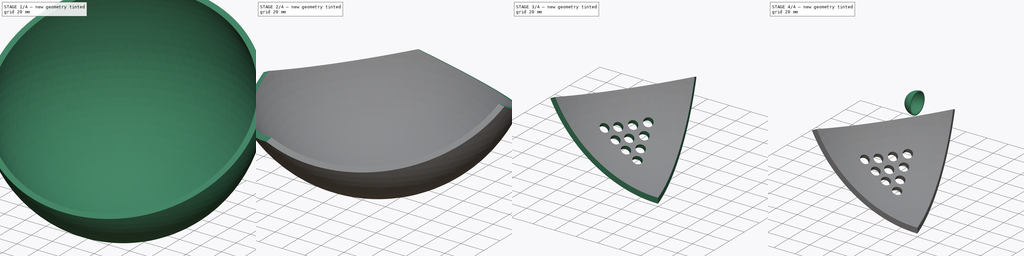
[diagram: build sequence overview — one tinted view per stage of 4, left to right]
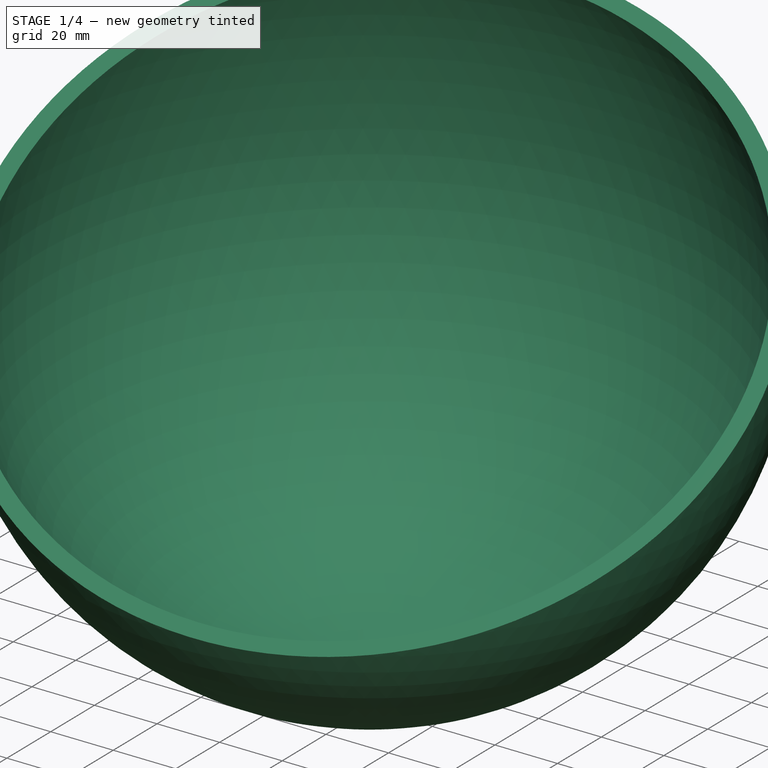
[diagram: stage 1 of 4 — iso view after this stage's code; geometry added in this stage tinted green]
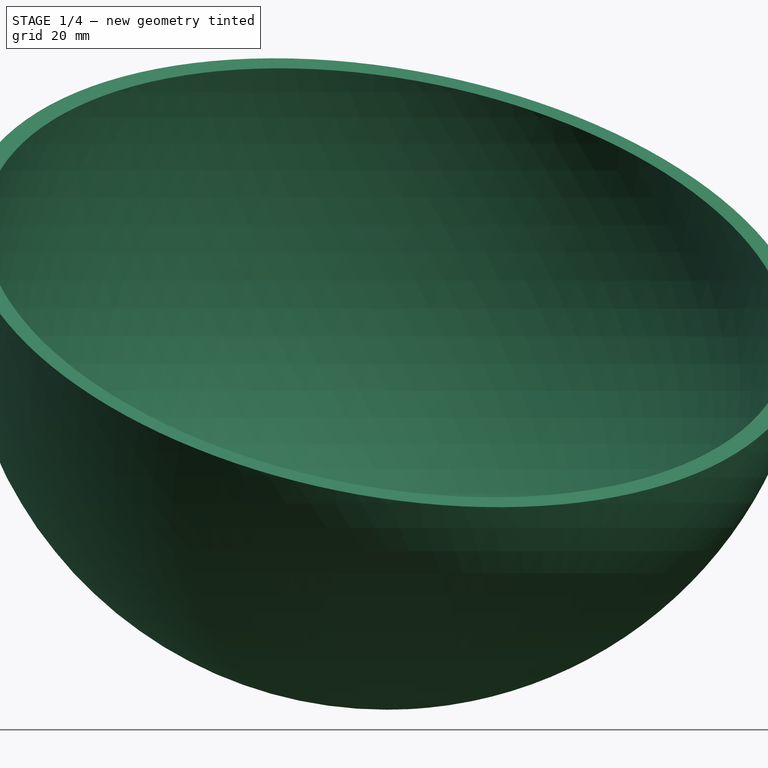
[diagram: stage 1 of 4 — front view after this stage's code; geometry added in this stage tinted green]
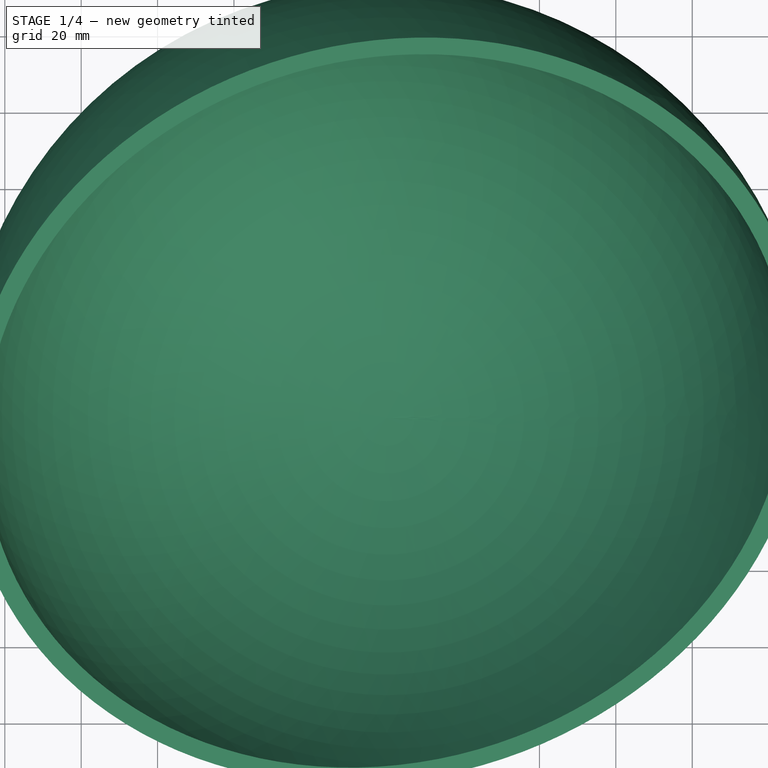
[diagram: stage 1 of 4 — top view after this stage's code; geometry added in this stage tinted green]
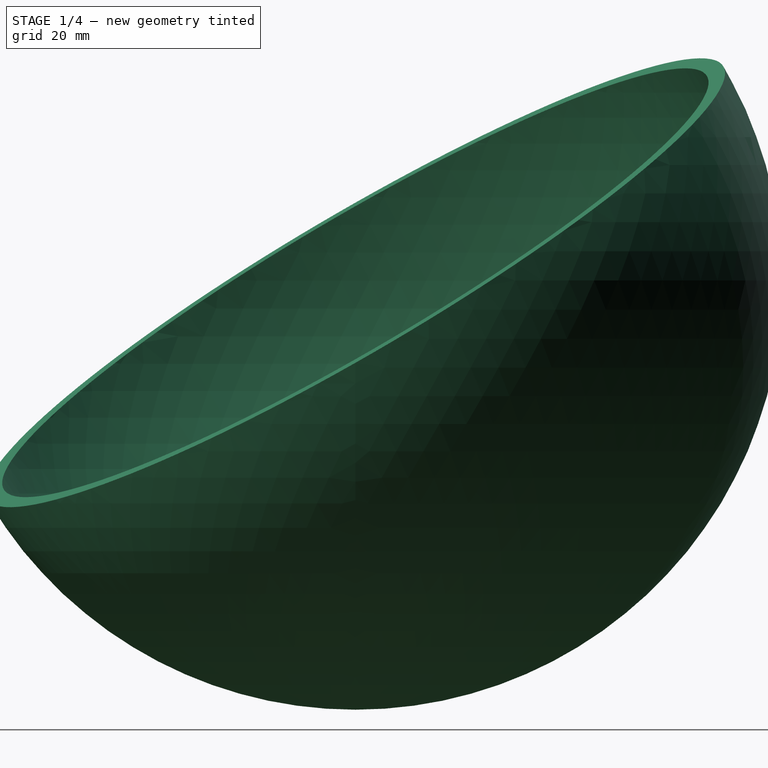
[diagram: stage 1 of 4 — right view after this stage's code; geometry added in this stage tinted green]
FCSTD DOCUMENT  (FreeCAD 0.19R24267 +99 (Git))
Label: test
License: All rights reserved
LicenseURL: http://en.wikipedia.org/wiki/All_rights_reserved
objects: PartDesign::SubtractiveBox×8, PartDesign::Body×3, PartDesign::Plane×3, PartDesign::AdditiveSphere×2, PartDesign::SubtractiveSphere×2, Part::Part2DObjectPython×2, Part::Vertex×1, App::Part×1, Spreadsheet::Sheet×1, Sketcher::SketchObject×1, PartDesign::Pocket×1
note: 36 computed .brp shape members not serialized (recipe doc carries the construction recipe); baked Part::Feature solids carry a one-line shape summary decoded from their .brp

FEATURE [PartDesign::Body] Body
  Group = -> [Sphere,Sphere001,Box]
  Origin = -> Origin
  Tip = -> Box
FEATURE [Part::Part2DObjectPython] Polygon  label="pentagon1"  # Draft 2D object (typed FeaturePython)
  Area = 0
  ChamferSize = 0
  DrawMode = 0
  FacesNumber = 5
  FilletRadius = 0
  MakeFace = false
  Placement = pos=(0,0,50) rot=(0,0,1;0rad)
  Radius = 100
  expr: .Placement.Base.z = <<Spreadsheet>>.hex_radius / 2
  expr: Radius = <<Spreadsheet>>.hex_radius
FEATURE [Part::Part2DObjectPython] Polygon001  label="pentagon0"  # Draft 2D object (typed FeaturePython)
  Area = 0
  ChamferSize = 0
  DrawMode = 0
  FacesNumber = 5
  FilletRadius = 0
  MakeFace = false
  Placement = pos=(0,0,-50) rot=(0,0,1;0.628319rad)
  Radius = 100
  expr: .Placement.Base.z = -<<Spreadsheet>>.hex_radius / 2
  expr: Radius = <<Spreadsheet>>.hex_radius
FEATURE [Part::Vertex] Vertex  label="center"
  AttacherType = Attacher::AttachEngine3D
  X = 0
  Y = 0
  Z = 0
FEATURE [PartDesign::Body] Body001
  Origin = -> Origin002
FEATURE [App::Part] Part
  Group = -> [Polygon001,Polygon,Vertex,Body001]
  Origin = -> Origin001
FEATURE [Spreadsheet::Sheet] Spreadsheet
  cells = A4=hex_radius; C4(hex_radius)==100mm; A5=sphere_radius; C5(sphere_radius)==hex_radius / 2 * sqrt(5)
FEATURE [PartDesign::Plane] DatumPlane
  Length = 79.1419
  MapMode = 13
  Placement = pos=(-16.6667,51.2947,33.3333) rot=(0.865183,0.137031,0.482371;0.63451rad)
  ResizeMode = 0
  Support = -> [Vertex,Polygon]
  Width = 119.482
FEATURE [PartDesign::AdditiveSphere] Sphere002
  Angle1 = -90
  Angle2 = 90
  Angle3 = 360
  AttacherType = Attacher::AttachEngine3D
  Radius = 111.803
  expr: Radius = <<Spreadsheet>>.sphere_radius
FEATURE [PartDesign::SubtractiveSphere] Sphere003
  Angle1 = -90
  Angle2 = 90
  Angle3 = 360
  AttacherType = Attacher::AttachEngine3D
  BaseFeature = -> Sphere002
  Radius = 106.803
  expr: Radius = <<Spreadsheet>>.sphere_radius - 5mm
FEATURE [PartDesign::SubtractiveBox] Box001
  AttacherType = Attacher::AttachEngine3D
  AttachmentOffset = pos=(-200,-200,0) rot=(0,0,1;0rad)
  BaseFeature = -> Sphere003
  Height = 400
  Length = 400
  MapMode = 5
  Placement = pos=(-154.305,-172.312,-71.8129) rot=(0.865183,0.137031,0.482371;0.63451rad)
  Support = -> [DatumPlane]
  Width = 400
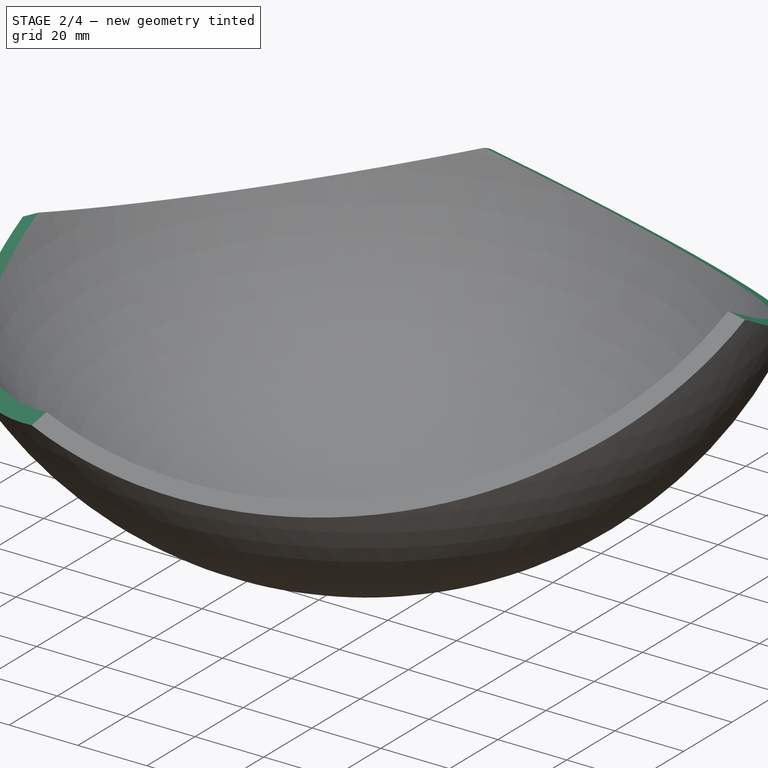
[diagram: stage 2 of 4 — iso view after this stage's code; geometry added in this stage tinted green]
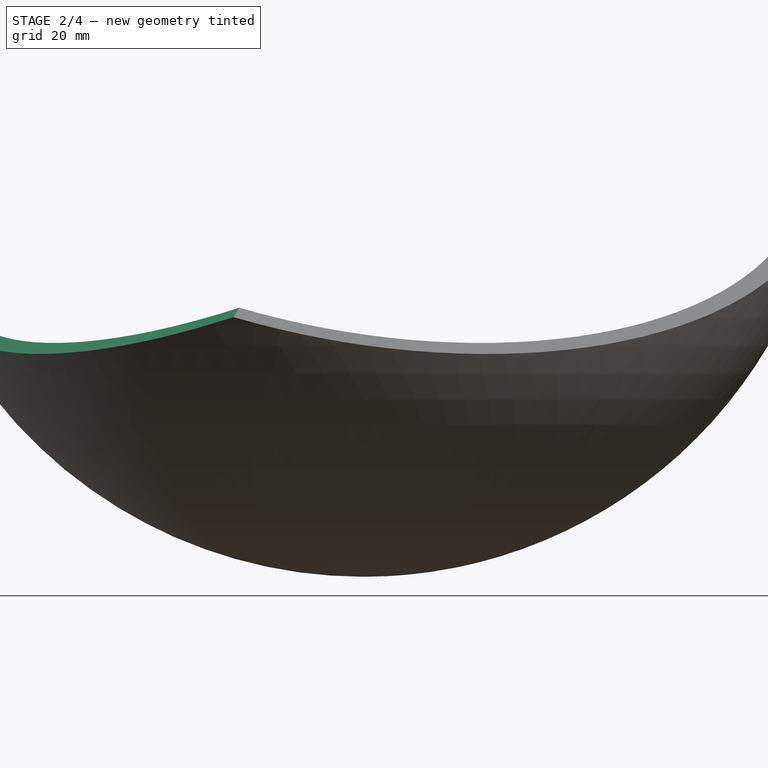
[diagram: stage 2 of 4 — front view after this stage's code; geometry added in this stage tinted green]
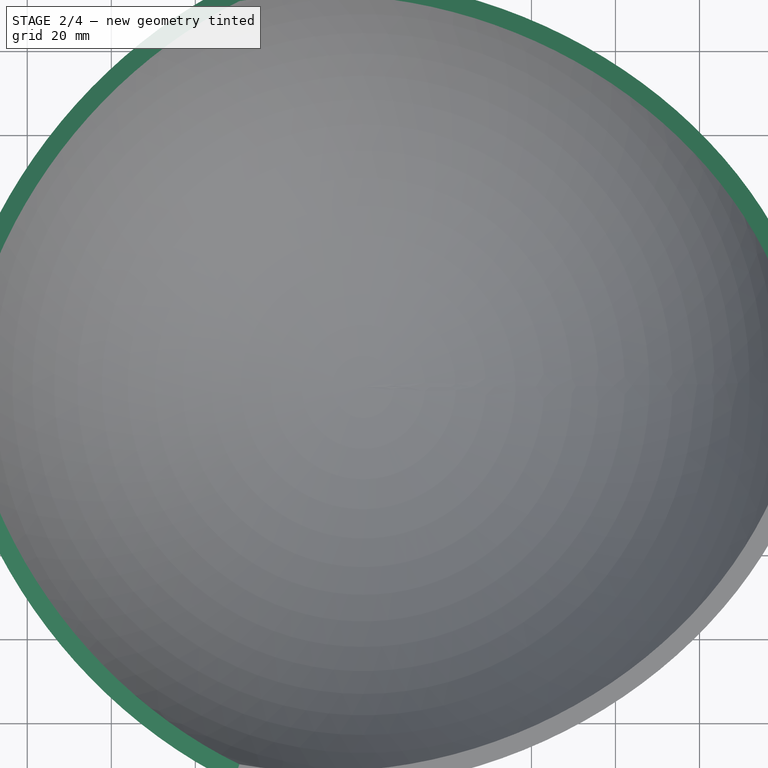
[diagram: stage 2 of 4 — top view after this stage's code; geometry added in this stage tinted green]
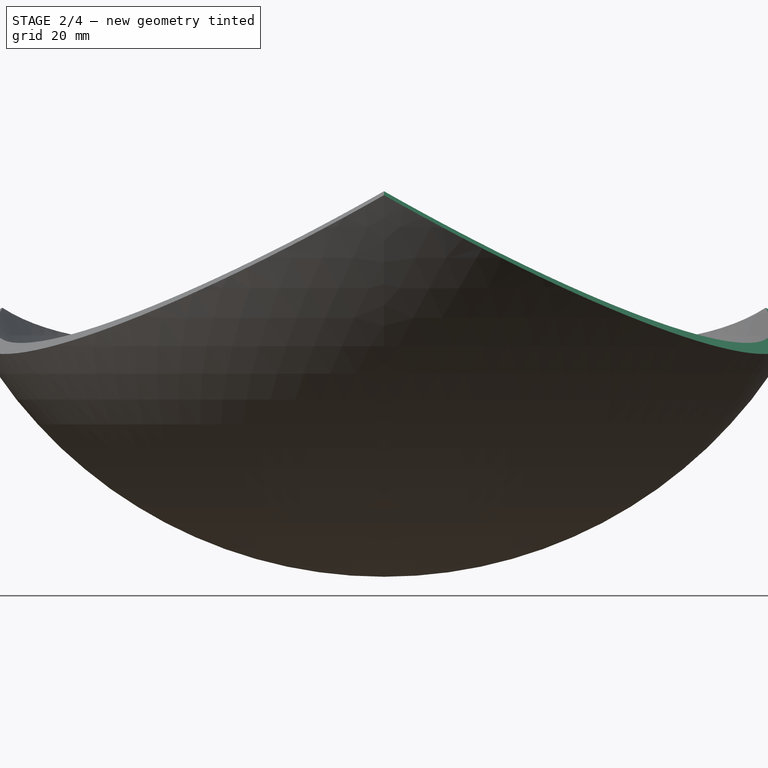
[diagram: stage 2 of 4 — right view after this stage's code; geometry added in this stage tinted green]
FEATURE [PartDesign::SubtractiveBox] Box002
  AttacherType = Attacher::AttachEngine3D
  AttachmentOffset = pos=(-200,-200,0) rot=(0,0,1;0rad)
  BaseFeature = -> Box001
  Height = 400
  Length = 400
  MapMode = 13
  Placement = pos=(-298.829,30.1015,-138.48) rot=(0.472633,-0.240819,-0.847717;1.08239rad)
  Support = -> [Vertex,Polygon001]
  Width = 400
FEATURE [PartDesign::SubtractiveBox] Box003
  AttacherType = Attacher::AttachEngine3D
  AttachmentOffset = pos=(-200,-200,0) rot=(0,0,1;0rad)
  BaseFeature = -> Box002
  Height = 400
  Length = 400
  MapMode = 13
  Placement = pos=(-63.715,293.505,-138.48) rot=(-0.137906,0.270656,0.952747;4.04547rad)
  Support = -> [Vertex,Polygon001]
  Width = 400
FEATURE [PartDesign::SubtractiveBox] Box004
  AttacherType = Attacher::AttachEngine3D
  AttachmentOffset = pos=(-200,-200,0) rot=(0,0,1;0rad)
  BaseFeature = -> Box003
  Height = 400
  Length = 400
  MapMode = 13
  Placement = pos=(259.451,151.295,-138.48) rot=(0.043241,0.273011,0.961039;2.83948rad)
  Support = -> [Vertex,Polygon001]
  Width = 400
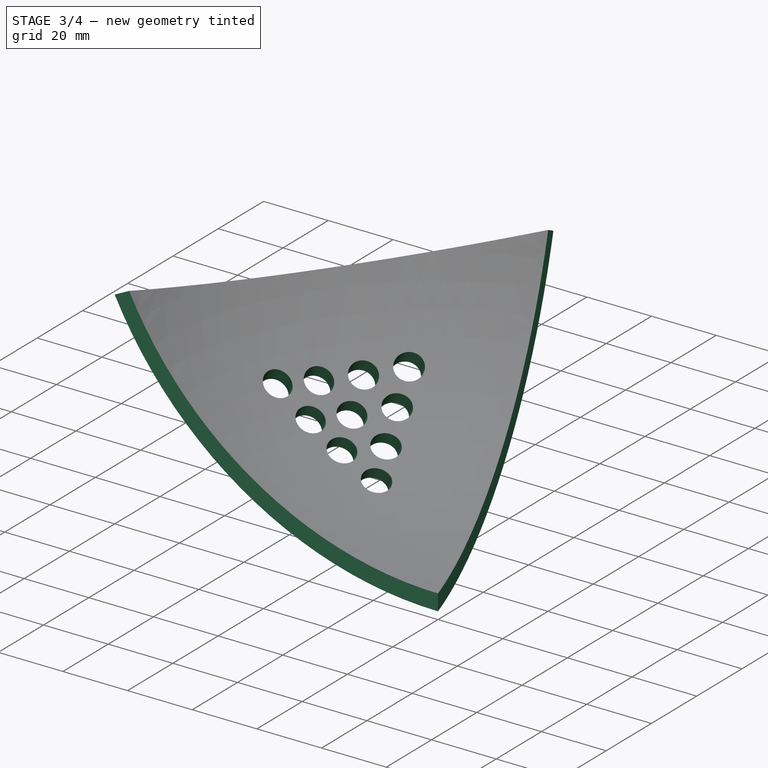
[diagram: stage 3 of 4 — iso view after this stage's code; geometry added in this stage tinted green]
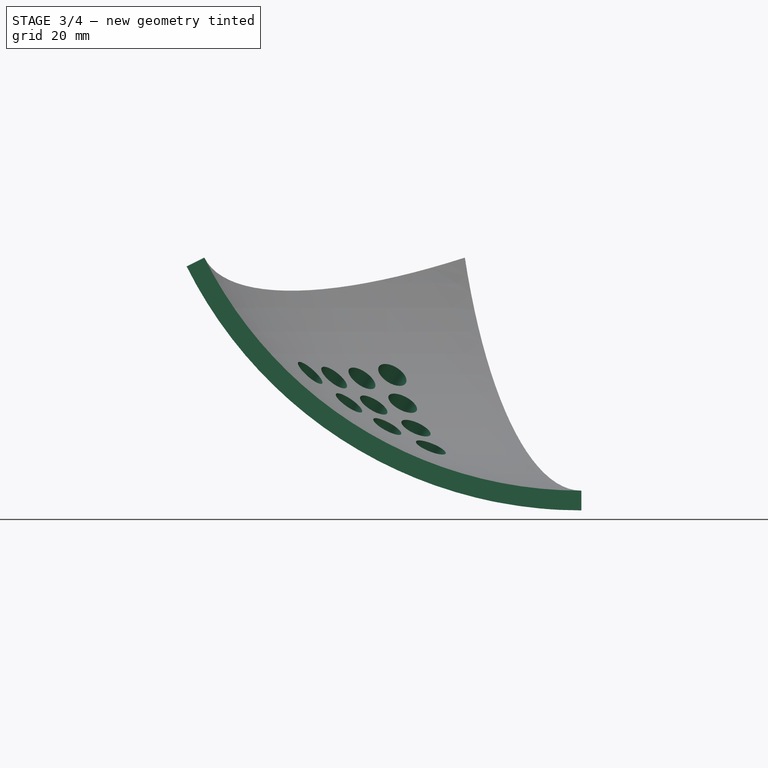
[diagram: stage 3 of 4 — front view after this stage's code; geometry added in this stage tinted green]
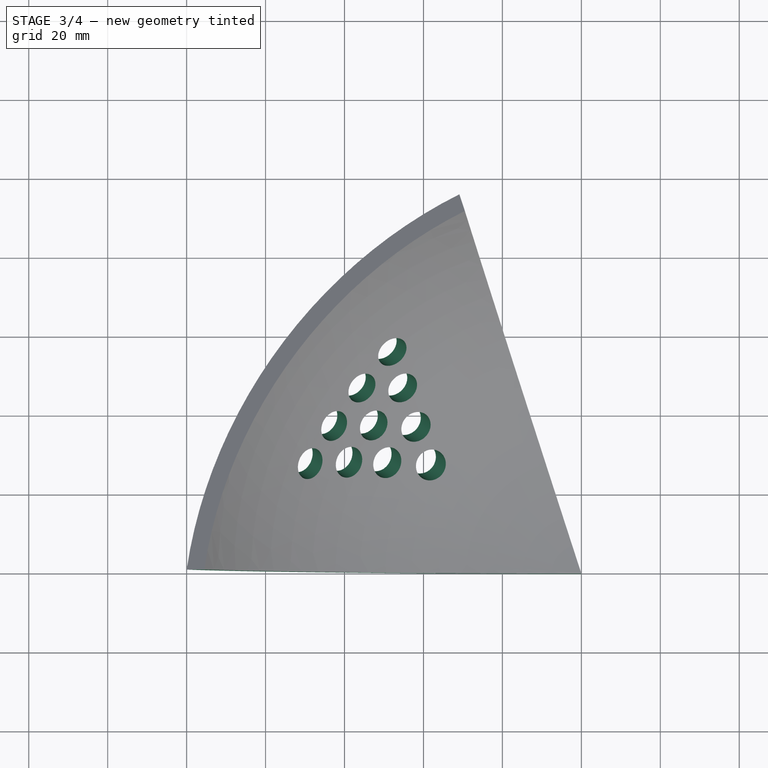
[diagram: stage 3 of 4 — top view after this stage's code; geometry added in this stage tinted green]
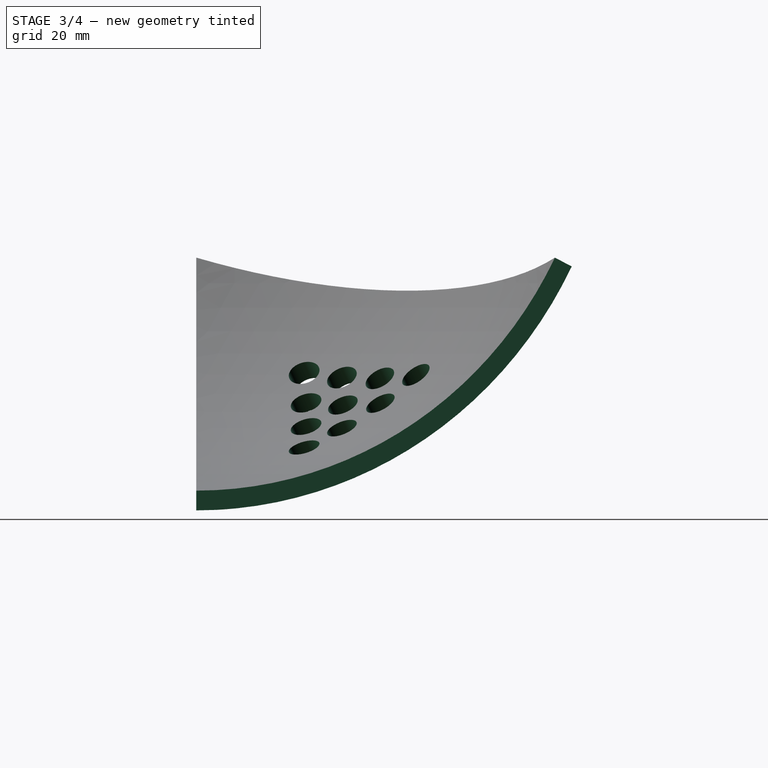
[diagram: stage 3 of 4 — right view after this stage's code; geometry added in this stage tinted green]
FEATURE [PartDesign::SubtractiveBox] Box005
  AttacherType = Attacher::AttachEngine3D
  AttachmentOffset = pos=(-200,-200,0) rot=(0,0,1;0rad)
  BaseFeature = -> Box004
  Height = 400
  Length = 400
  MapMode = 13
  Placement = pos=(224.065,-200,-138.48) rot=(0.263602,0.263602,0.927916;1.64554rad)
  Support = -> [Vertex,Polygon001]
  Width = 400
FEATURE [PartDesign::Plane] DatumPlane001
  Length = 71.9046
  MapMode = 13
  Placement = pos=(-33.3333,-1.705e-13,-53.9345) rot=(1,0,0;1.5708rad)
  ResizeMode = 0
  Support = -> [Box005,Vertex]
  Width = 92.5058
FEATURE [PartDesign::SubtractiveBox] Box006
  AttacherType = Attacher::AttachEngine3D
  AttachmentOffset = pos=(-200,-200,0) rot=(0,0,1;0rad)
  BaseFeature = -> Box005
  Height = 400
  Length = 400
  MapMode = 5
  Placement = pos=(-233.333,-1.0554e-12,-253.934) rot=(1,0,0;1.5708rad)
  Support = -> [DatumPlane001]
  Width = 400
FEATURE [PartDesign::SubtractiveBox] Box007
  AttacherType = Attacher::AttachEngine3D
  AttachmentOffset = pos=(-200,-200,0) rot=(0,0,1;0rad)
  BaseFeature = -> Box006
  Height = 400
  Length = 400
  MapMode = 13
  Placement = pos=(51.5028,-158.509,-253.934) rot=(0.456966,0.62896,0.62896;2.28433rad)
  Support = -> [Vertex,Box006,Polygon001]
  Width = 400
FEATURE [PartDesign::Plane] DatumPlane002
  Length = 85.3268
  MapMode = 13
  Placement = pos=(-41.6825,30.2841,-67.4438) rot=(-0.434677,0.853102,0.288571;3.43357rad)
  ResizeMode = 0
  Support = -> [Box007]
  Width = 101.339
FEATURE [Sketcher::SketchObject] Sketch
  ExternalGeometry = -> [Box007]
  FullyConstrained = false
  MapMode = 5
  Placement = pos=(-41.6825,30.2841,-67.4438) rot=(-0.434677,0.853102,0.288571;3.43357rad)
  Support = -> [DatumPlane002]
  sketch-geometry (56):
    g0: GeomPoint X=1.31433 Y=33.177 Z=0
    g1: GeomPoint X=-27.4178 Y=32.7976 Z=0
    g2: GeomPoint X=30.0464 Y=33.5564 Z=0
    g3: GeomPoint X=-16.8572 Y=9.73389 Z=0
    g4: GeomPoint X=-4.94486 Y=9.89119 Z=0
    g5: GeomPoint X=6.96981 Y=10.0485 Z=0
    g6: GeomPoint X=18.2808 Y=10.1979 Z=0
    g7: GeomPoint X=-28.0749 Y=-17.7267 Z=0
    g8: GeomPoint X=-42.1124 Y=7.34571 Z=0
    g9: GeomPoint X=-14.0375 Y=-42.7992 Z=0
    g10: GeomPoint X=-11.1242 Y=-0.505885 Z=0
    g11: GeomPoint X=-5.2162 Y=-11.0583 Z=0
    g12: GeomPoint X=0.309933 Y=-20.9285 Z=0
    g13: GeomPoint X=29.3893 Y=-16.9679 Z=0
    g14: GeomPoint X=14.6946 Y=-42.4197 Z=0
    g15: GeomPoint X=44.0839 Y=8.48395 Z=0
    g16: GeomPoint X=6.40235 Y=-10.3762 Z=0
    g17: GeomPoint X=30.8373 Y=1.89745 Z=0
    g18: LineSegment StartX=58.7785 StartY=33.9358 StartZ=0 EndX=44.0839 EndY=8.48395 EndZ=0
    g19: LineSegment StartX=44.0839 StartY=8.48395 StartZ=0 EndX=29.3893 EndY=-16.9679 EndZ=0
    g20: LineSegment StartX=29.3893 StartY=-16.9679 StartZ=0 EndX=14.6946 EndY=-42.4197 EndZ=0
    g21: LineSegment StartX=14.6946 StartY=-42.4197 StartZ=0 EndX=-1.226e-13 EndY=-67.8716 EndZ=0
    g22: LineSegment StartX=-1.231e-13 StartY=-67.8716 StartZ=0 EndX=-14.0375 EndY=-42.7992 EndZ=0
    g23: LineSegment StartX=-14.0375 StartY=-42.7992 StartZ=0 EndX=-28.0749 EndY=-17.7267 EndZ=0
    g24: LineSegment StartX=-28.0749 StartY=-17.7267 StartZ=0 EndX=-42.1124 EndY=7.34571 EndZ=0
    g25: LineSegment StartX=-42.1124 StartY=7.34571 StartZ=0 EndX=-56.1499 EndY=32.4181 EndZ=0
    g26: GeomPoint X=0.876219 Y=-0.505885 Z=0
    g27: LineSegment StartX=-56.1499 StartY=32.4181 StartZ=0 EndX=-41.7838 EndY=32.6078 EndZ=0
    g28: LineSegment StartX=-41.7838 StartY=32.6078 StartZ=0 EndX=-27.4178 EndY=32.7976 EndZ=0
    g29: LineSegment StartX=-27.4178 StartY=32.7976 StartZ=0 EndX=-13.0517 EndY=32.9873 EndZ=0
    g30: LineSegment StartX=-13.0517 StartY=32.9873 StartZ=0 EndX=1.31433 EndY=33.177 EndZ=0
    g31: LineSegment StartX=1.31433 StartY=33.177 StartZ=0 EndX=15.6804 EndY=33.3667 EndZ=0
    g32: LineSegment StartX=15.6804 StartY=33.3667 StartZ=0 EndX=30.0464 EndY=33.5564 EndZ=0
    g33: LineSegment StartX=30.0464 StartY=33.5564 StartZ=0 EndX=44.4125 EndY=33.7461 EndZ=0
    g34: LineSegment StartX=44.4125 StartY=33.7461 StartZ=0 EndX=58.7785 EndY=33.9358 EndZ=0
    g35: Circle CenterX=-16.8572 CenterY=9.73389 CenterZ=0 NormalX=0 NormalY=0 NormalZ=1 AngleXU=0 Radius=4
    g36: Circle CenterX=-4.94486 CenterY=9.89119 CenterZ=0 NormalX=0 NormalY=0 NormalZ=1 AngleXU=0 Radius=4
    g37: Circle CenterX=6.96981 CenterY=10.0485 CenterZ=0 NormalX=0 NormalY=0 NormalZ=1 AngleXU=0 Radius=4
    g38: Circle CenterX=18.2808 CenterY=10.1979 CenterZ=0 NormalX=0 NormalY=0 NormalZ=1 AngleXU=0 Radius=4
    g39: LineSegment StartX=-16.8572 StartY=9.73389 StartZ=0 EndX=18.2808 EndY=10.1979 EndZ=0
    g40: LineSegment StartX=18.2808 StartY=10.1979 StartZ=0 EndX=0.309933 EndY=-20.9285 EndZ=0
    g41: LineSegment StartX=0.309933 StartY=-20.9285 StartZ=0 EndX=-16.8572 EndY=9.73389 EndZ=0
    g42: LineSegment StartX=-4.94486 StartY=9.89119 StartZ=0 EndX=-4.94486 EndY=33.0943 EndZ=0
    g43: LineSegment StartX=-11.1242 StartY=-0.505885 StartZ=0 EndX=-31.3702 EndY=-11.8411 EndZ=0
    g44: LineSegment StartX=12.1009 StartY=-0.505885 StartZ=0 EndX=32.1954 EndY=-12.1074 EndZ=0
    g45: LineSegment StartX=-56.1499 StartY=32.4181 StartZ=0 EndX=29.3893 EndY=-16.9679 EndZ=0
    g46: LineSegment StartX=58.7785 StartY=33.9358 StartZ=0 EndX=-28.0749 EndY=-17.7267 EndZ=0
    g47: Circle CenterX=0.876219 CenterY=-0.505885 CenterZ=0 NormalX=0 NormalY=0 NormalZ=1 AngleXU=0 Radius=4
    g48: Circle CenterX=-11.1242 CenterY=-0.505885 CenterZ=0 NormalX=0 NormalY=0 NormalZ=1 AngleXU=0 Radius=4
    g49: Circle CenterX=-5.2162 CenterY=-11.0583 CenterZ=0 NormalX=0 NormalY=0 NormalZ=1 AngleXU=0 Radius=4
    g50: Circle CenterX=6.40235 CenterY=-10.3762 CenterZ=0 NormalX=0 NormalY=0 NormalZ=1 AngleXU=0 Radius=4
    g51: Circle CenterX=12.1009 CenterY=-0.505885 CenterZ=0 NormalX=0 NormalY=0 NormalZ=1 AngleXU=0 Radius=4
    g52: Circle CenterX=0.309933 CenterY=-20.9285 CenterZ=0 NormalX=0 NormalY=0 NormalZ=1 AngleXU=0 Radius=4
    g53: LineSegment StartX=6.96981 StartY=10.0485 StartZ=0 EndX=-5.2162 EndY=-11.0583 EndZ=0
    g54: LineSegment StartX=-4.94486 StartY=9.89119 StartZ=0 EndX=6.40235 EndY=-10.3762 EndZ=0
    g55: LineSegment StartX=-11.1242 StartY=-0.505885 StartZ=0 EndX=12.1009 EndY=-0.505885 EndZ=0
  constraints (117):
    c: Coincident(g18,g15)
    c: Coincident(g18,g19)
    c: Coincident(g19,g13)
    c: Coincident(g19,g20)
    c: Coincident(g20,g14)
    c: Coincident(g20,g21)
    c: Coincident(g21,g-3)
    c: Coincident(g21,g22)
    c: Coincident(g22,g9)
    c: Coincident(g22,g23)
    c: Coincident(g23,g7)
    c: Coincident(g23,g24)
    c: Coincident(g24,g8)
    c: Coincident(g24,g25)
    c: Parallel(g25,g24)
    c: Parallel(g24,g23)
    c: Parallel(g23,g22)
    c: Parallel(g21,g20)
    c: Parallel(g20,g19)
    c: Parallel(g19,g18)
    c: Equal(g25,g24)
    c: Equal(g24,g23)
    c: Equal(g23,g22)
    c: Equal(g21,g20)
    c: Equal(g20,g19)
    c: Equal(g19,g18)
    c: Coincident(g25,g27)
    c: Coincident(g27,g28)
    c: Coincident(g28,g1)
    c: Coincident(g28,g29)
    c: Coincident(g29,g30)
    c: Coincident(g30,g0)
    c: Coincident(g30,g31)
    c: Coincident(g31,g32)
    c: Coincident(g32,g2)
    c: Coincident(g32,g33)
    c: Coincident(g33,g34)
    c: Coincident(g34,g18)
    c: Parallel(g27,g28)
    c: Parallel(g28,g29)
    c: Parallel(g29,g30)
    c: Parallel(g30,g31)
    c: Parallel(g31,g32)
    c: Parallel(g32,g33)
    c: Parallel(g33,g34)
    c: Coincident(g25,g-4)
    c: Equal(g27,g28)
    c: Equal(g28,g29)
    c: Equal(g29,g30)
    c: Equal(g30,g31)
    c: Equal(g31,g32)
    c: Equal(g32,g33)
    c: Equal(g33,g34)
    c: Coincident(g-5,g18)
    c: Coincident(g35,g3)
    c: Coincident(g36,g4)
    c: Coincident(g37,g5)
    c: Coincident(g38,g6)
    c: Coincident(g39,g35)
    c: Coincident(g39,g38)
    c: Coincident(g40,g38)
    c: Coincident(g40,g12)
    c: Coincident(g41,g12)
    c: Coincident(g41,g35)
    c: PointOnObject(g42,g39)
    c: PointOnObject(g42,g29)
    c: Vertical(g42)
    c: PointOnObject(g10,g41)
    c: PointOnObject(g11,g41)
    c: Coincident(g43,g10)
    c: PointOnObject(g43,g24)
    c: Perpendicular(g24,g43)
    c: Parallel(g39,g31)
    c: Parallel(g40,g20)
    c: Parallel(g41,g24)
    c: PointOnObject(g37,g39)
    c: PointOnObject(g44,g40)
    c: PointOnObject(g44,g19)
    c: Perpendicular(g19,g44)
    c: Equal(g42,g43)
    c: Equal(g43,g44)
    c: PointOnObject(g16,g40)
    c: Coincident(g45,g25)
    c: Coincident(g45,g13)
    c: Coincident(g46,g18)
    c: Coincident(g46,g7)
    c: PointOnObject(g26,g45)
    c: PointOnObject(g26,g46)
    c: Equal(g38,g36)
    c: Equal(g36,g37)
    c: Equal(g37,g35)
    c: Coincident(g47,g26)
    c: Coincident(g48,g10)
    c: Coincident(g49,g11)
    c: Coincident(g50,g16)
    c: Coincident(g51,g44)
    c: Coincident(g52,g12)
    c: Equal(g51,g47)
    c: Equal(g47,g48)
    c: Equal(g48,g49)
    c: Equal(g49,g50)
    c: Equal(g50,g52)
    c: Equal(g52,g35)
    c: Coincident(g53,g37)
    c: Coincident(g53,g49)
    c: PointOnObject(g47,g53)
    c: Coincident(g54,g36)
    c: Coincident(g54,g50)
    c: PointOnObject(g47,g54)
    c: Coincident(g55,g48)
    c: Coincident(g55,g51)
    c: Horizontal(g55)
    c: PointOnObject(g47,g55)
    c: Radius(g35) = 4
    c: Parallel(g53,g40)
    c: Parallel(g54,g41)
    c: Coincident(g42,g36)
FEATURE [PartDesign::Pocket] Pocket
  BaseFeature = -> Box007
  Length = 5
  Length2 = 100
  Midplane = true
  Placement = pos=(51.5028,-158.509,-253.934) rot=(0.456966,0.62896,0.62896;2.28433rad)
  Profile = -> Sketch
  Type = 1
FEATURE [PartDesign::Body] Body002
  Group = -> [DatumPlane,Sphere002,Sphere003,Box001,Box002,Box003,Box004,Box005,DatumPlane001,Box006,Box007,DatumPlane002,Sketch,Pocket]
  Origin = -> Origin003
  Tip = -> Pocket
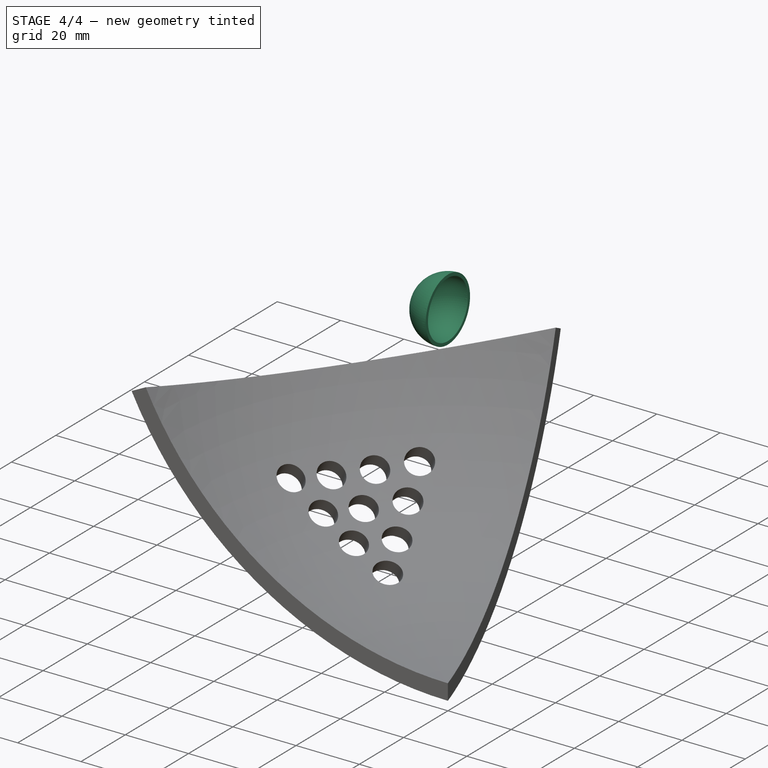
[diagram: stage 4 of 4 — iso view after this stage's code; geometry added in this stage tinted green]
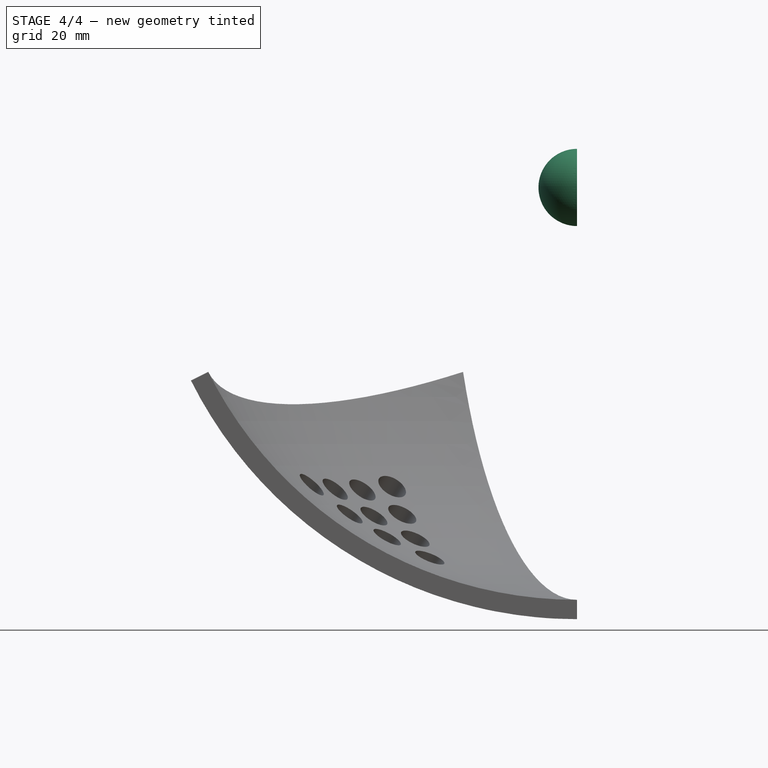
[diagram: stage 4 of 4 — front view after this stage's code; geometry added in this stage tinted green]
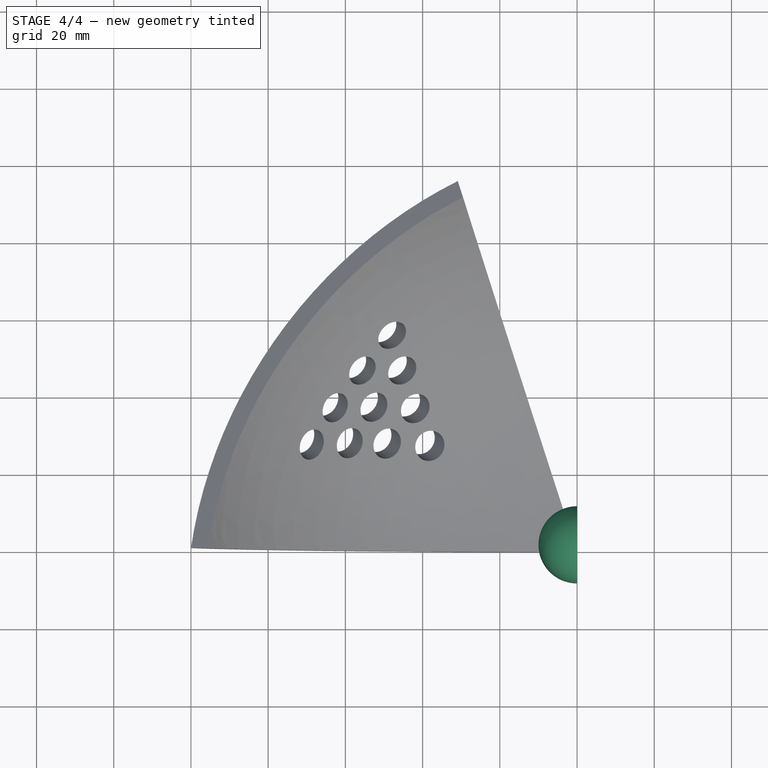
[diagram: stage 4 of 4 — top view after this stage's code; geometry added in this stage tinted green]
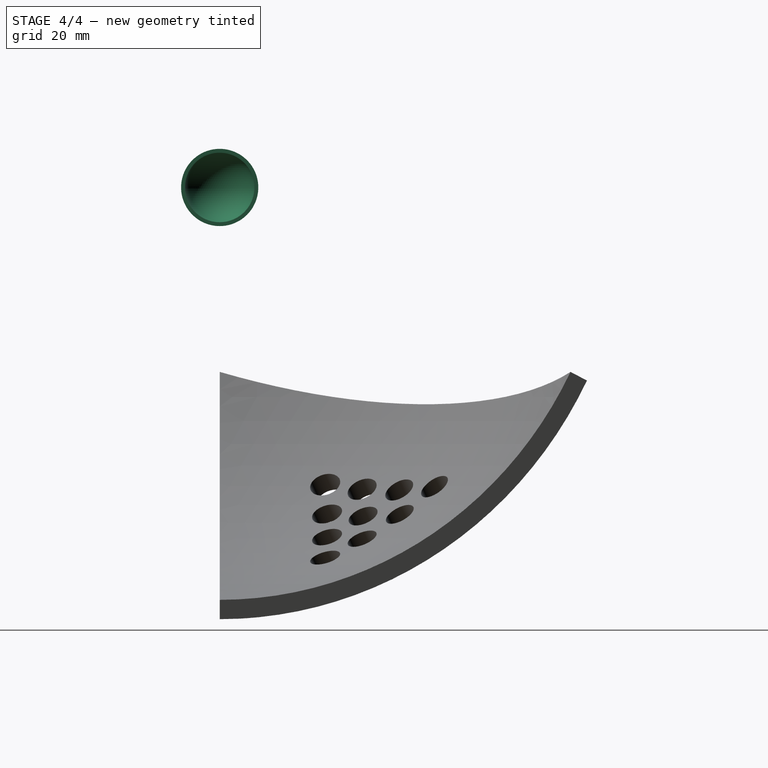
[diagram: stage 4 of 4 — right view after this stage's code; geometry added in this stage tinted green]
FEATURE [PartDesign::AdditiveSphere] Sphere
  Angle1 = -90
  Angle2 = 90
  Angle3 = 360
  AttacherType = Attacher::AttachEngine3D
  Radius = 10
FEATURE [PartDesign::SubtractiveSphere] Sphere001
  Angle1 = -90
  Angle2 = 90
  Angle3 = 360
  AttacherType = Attacher::AttachEngine3D
  BaseFeature = -> Sphere
  Radius = 9
FEATURE [PartDesign::SubtractiveBox] Box
  AttacherType = Attacher::AttachEngine3D
  AttachmentOffset = pos=(-10,0,-10) rot=(0,0,1;0rad)
  BaseFeature = -> Sphere001
  Height = 20
  Length = 20
  MapMode = 4
  Placement = pos=(0,-10,-10) rot=(0.57735,0.57735,0.57735;4.18879rad)
  Support = -> [YZ_Plane]
  Width = 20
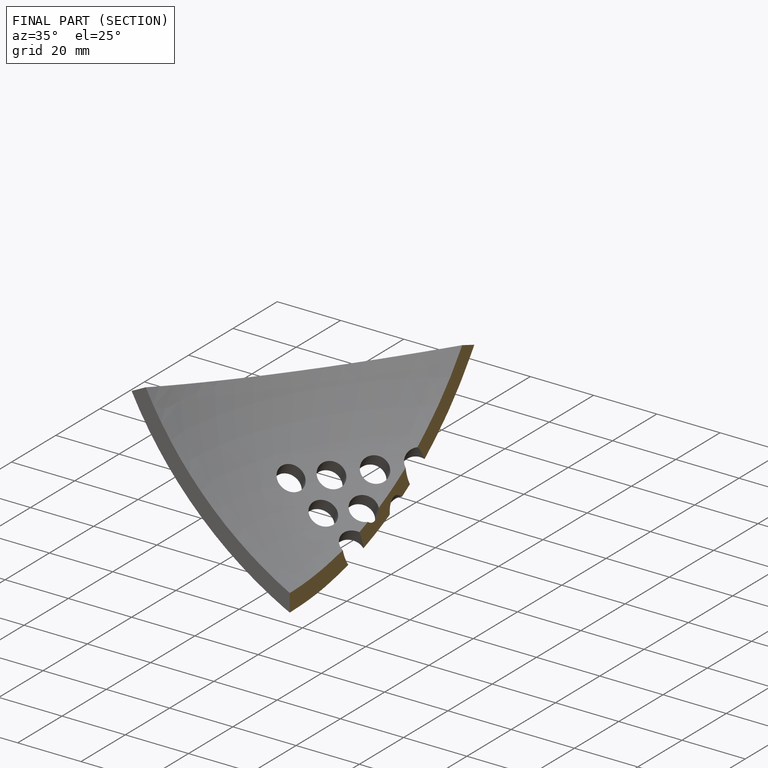
[diagram: finished part — half-section view (interior)]
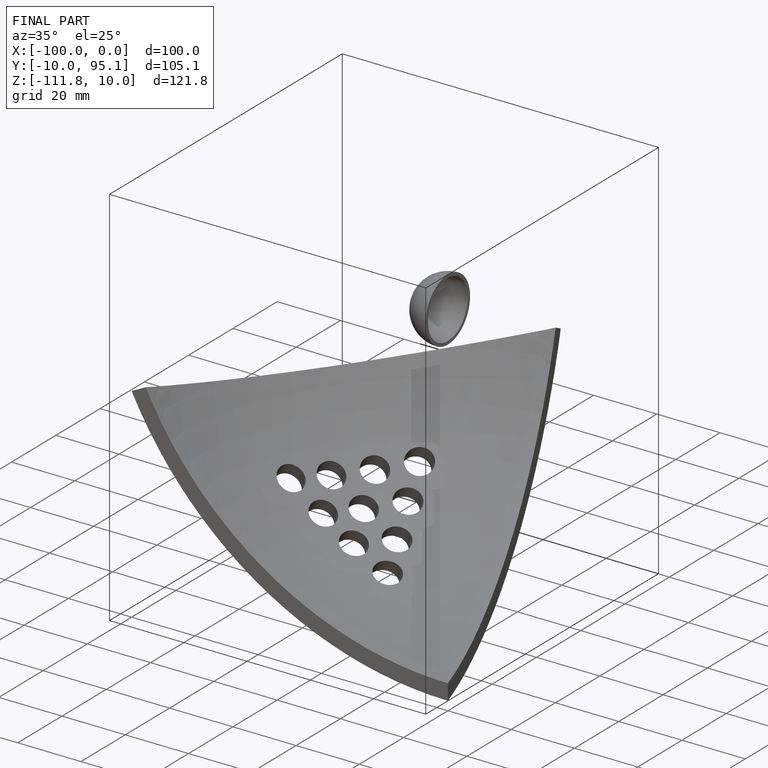
[diagram: finished part — iso view with bounding-box wireframe]
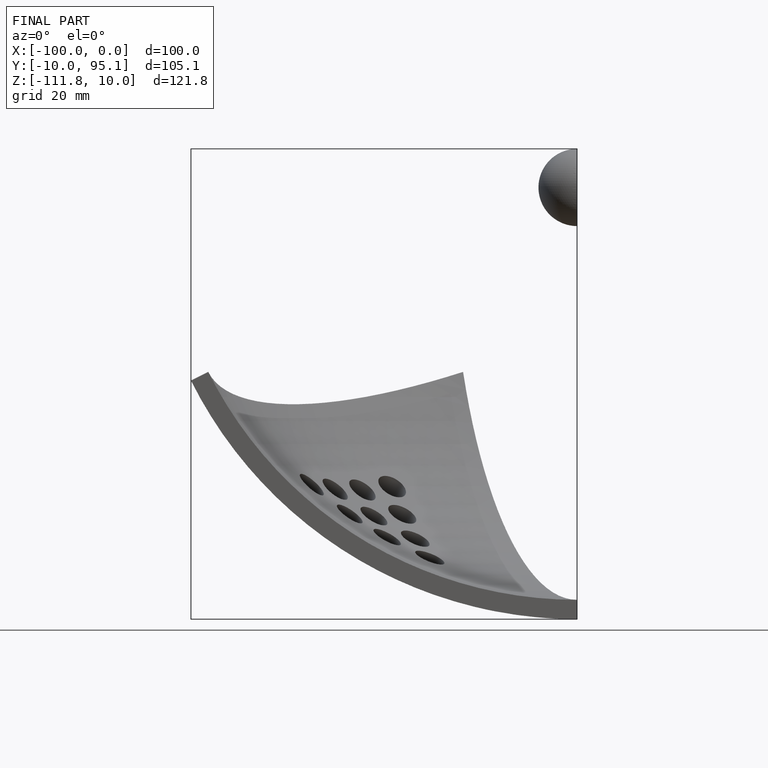
[diagram: finished part — front view with bounding-box wireframe]
